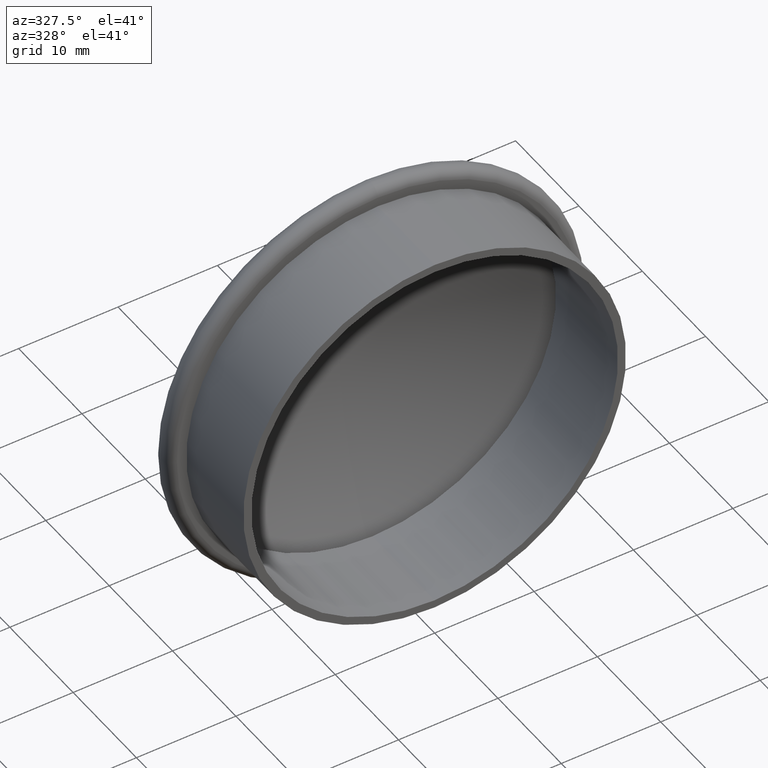
[diagram: clean part render]
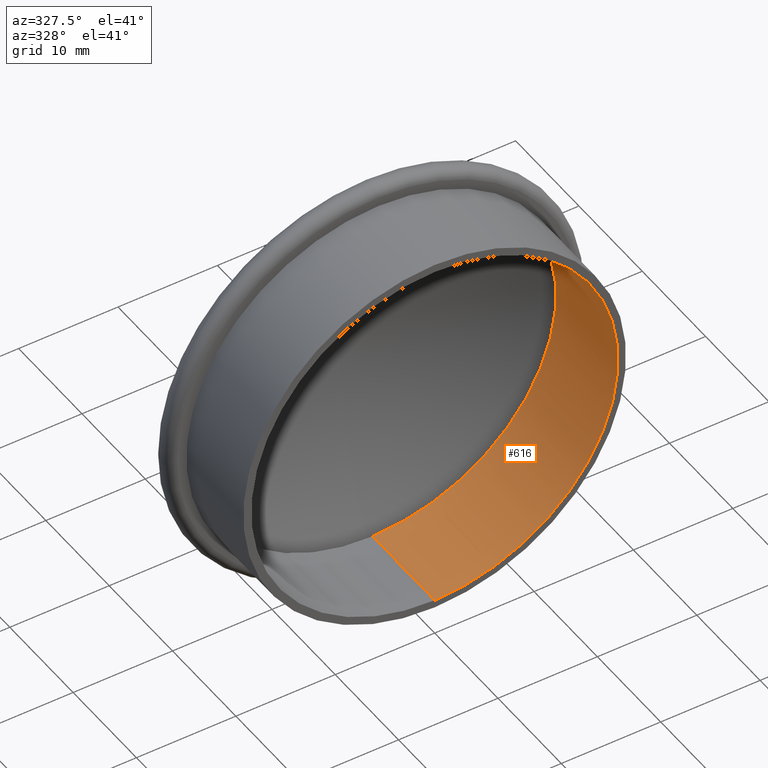
[diagram: same view with one face highlighted and labeled with its STEP entity id]
A machine part, auxiliary view. The second image highlights one B-rep face of the part: STEP entity #616.
In plain terms, the highlighted cylindrical surface (partial cylindrical patch) has radius 18.45 mm, axis along (-0, -1, -0).
Its self-contained STEP definition (entity closure, byte-faithful):
#47 = DIRECTION ( 'NONE',  ( 0.0000000000000000000, 0.0000000000000000000, -1.000000000000000000 ) ) ;
#48 = CARTESIAN_POINT ( 'NONE',  ( 2.259473344426867500E-015, 9.799999999999998900, 18.45000000000000300 ) ) ;
#59 = DIRECTION ( 'NONE',  ( 0.0000000000000000000, 0.0000000000000000000, -1.000000000000000000 ) ) ;
#65 = FACE_OUTER_BOUND ( 'NONE', #200, .T. ) ;
#75 = EDGE_CURVE ( 'NONE', #507, #308, #137, .T. ) ;
#107 = CARTESIAN_POINT ( 'NONE',  ( 0.0000000000000000000, 0.0000000000000000000, 0.0000000000000000000 ) ) ;
#110 = CARTESIAN_POINT ( 'NONE',  ( 2.259473344426867500E-015, 0.0000000000000000000, 18.45000000000000300 ) ) ;
#117 = VERTEX_POINT ( 'NONE', #572 ) ;
#127 = ORIENTED_EDGE ( 'NONE', *, *, #75, .F. ) ;
#129 = AXIS2_PLACEMENT_3D ( 'NONE', #420, #313, #59 ) ;
#133 = VECTOR ( 'NONE', #343, 1000.000000000000000 ) ;
#137 = CIRCLE ( 'NONE', #569, 18.45000000000000300 ) ;
#147 = DIRECTION ( 'NONE',  ( 0.0000000000000000000, 0.0000000000000000000, -1.000000000000000000 ) ) ;
#169 = ORIENTED_EDGE ( 'NONE', *, *, #546, .T. ) ;
#200 = EDGE_LOOP ( 'NONE', ( #368, #127, #169, #500 ) ) ;
#230 = CARTESIAN_POINT ( 'NONE',  ( 0.0000000000000000000, 9.799999999999998900, 0.0000000000000000000 ) ) ;
#233 = EDGE_CURVE ( 'NONE', #308, #426, #513, .T. ) ;
#308 = VERTEX_POINT ( 'NONE', #48 ) ;
#313 = DIRECTION ( 'NONE',  ( -0.0000000000000000000, -1.000000000000000000, -0.0000000000000000000 ) ) ;
#343 = DIRECTION ( 'NONE',  ( -0.0000000000000000000, -1.000000000000000000, -0.0000000000000000000 ) ) ;
#347 = DIRECTION ( 'NONE',  ( -0.0000000000000000000, -1.000000000000000000, -0.0000000000000000000 ) ) ;
#368 = ORIENTED_EDGE ( 'NONE', *, *, #233, .F. ) ;
#371 = CIRCLE ( 'NONE', #460, 18.45000000000000300 ) ;
#386 = CARTESIAN_POINT ( 'NONE',  ( 0.0000000000000000000, 0.0000000000000000000, -18.45000000000000300 ) ) ;
#412 = CARTESIAN_POINT ( 'NONE',  ( 0.0000000000000000000, 9.799999999999998900, -18.45000000000000300 ) ) ;
#420 = CARTESIAN_POINT ( 'NONE',  ( 0.0000000000000000000, 0.0000000000000000000, 0.0000000000000000000 ) ) ;
#426 = VERTEX_POINT ( 'NONE', #110 ) ;
#460 = AXIS2_PLACEMENT_3D ( 'NONE', #107, #565, #147 ) ;
#500 = ORIENTED_EDGE ( 'NONE', *, *, #621, .T. ) ;
#507 = VERTEX_POINT ( 'NONE', #412 ) ;
#513 = LINE ( 'NONE', #602, #133 ) ;
#526 = VECTOR ( 'NONE', #611, 1000.000000000000000 ) ;
#546 = EDGE_CURVE ( 'NONE', #507, #117, #580, .T. ) ;
#565 = DIRECTION ( 'NONE',  ( -0.0000000000000000000, -1.000000000000000000, -0.0000000000000000000 ) ) ;
#569 = AXIS2_PLACEMENT_3D ( 'NONE', #230, #347, #47 ) ;
#572 = CARTESIAN_POINT ( 'NONE',  ( 0.0000000000000000000, 0.0000000000000000000, -18.45000000000000300 ) ) ;
#573 = CYLINDRICAL_SURFACE ( 'NONE', #129, 18.45000000000000300 ) ;
#580 = LINE ( 'NONE', #386, #526 ) ;
#602 = CARTESIAN_POINT ( 'NONE',  ( 2.259473344426867500E-015, 0.0000000000000000000, 18.45000000000000300 ) ) ;
#611 = DIRECTION ( 'NONE',  ( -0.0000000000000000000, -1.000000000000000000, -0.0000000000000000000 ) ) ;
#616 = ADVANCED_FACE ( 'NONE', ( #65 ), #573, .F. ) ;
#621 = EDGE_CURVE ( 'NONE', #117, #426, #371, .T. ) ;